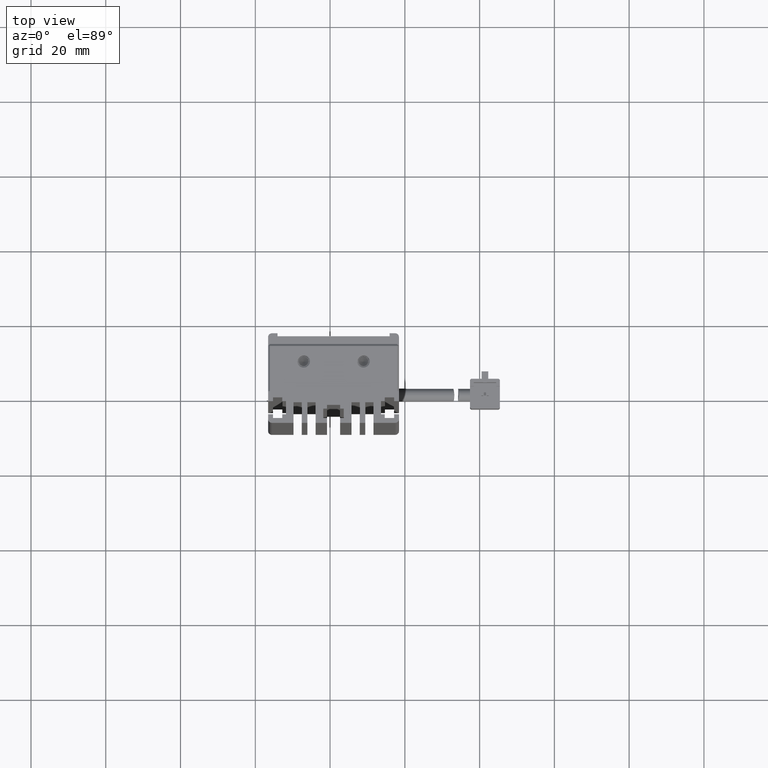
[diagram: clean part render]
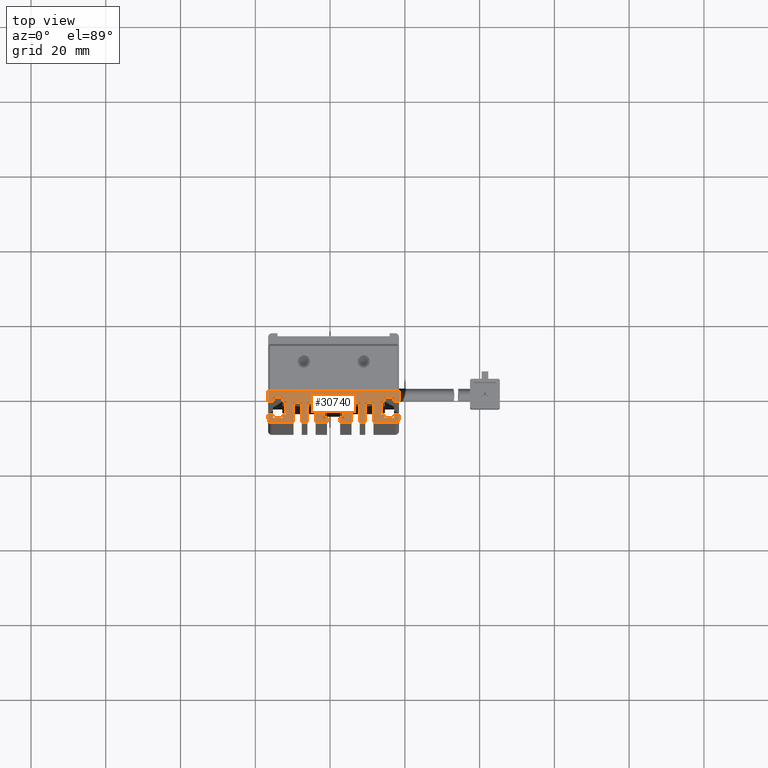
[diagram: same view with one face highlighted and labeled with its STEP entity id]
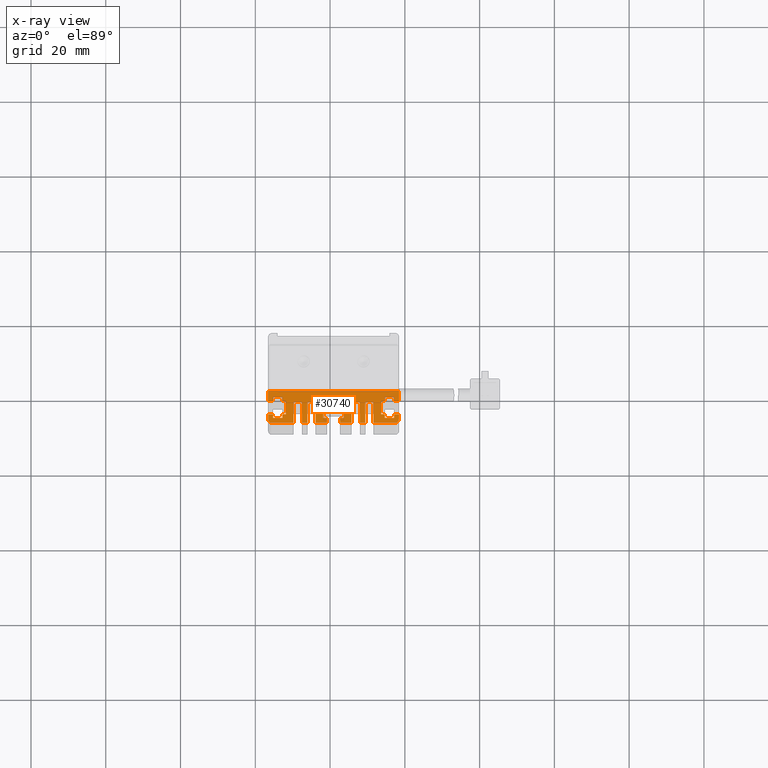
[diagram: x-ray of the same camera — body ghosted, the highlighted face saturated]
A machine part, top view. The second image highlights one B-rep face of the part: STEP entity #30740.
The next image is the same camera in x-ray: the body ghosted, the highlighted face saturated — about 0% of this face is hidden behind the body in this view.
In plain terms, the highlighted planar face has unit normal (-0, 0, 1).
Its self-contained STEP definition (entity closure, byte-faithful):
#185 = DIRECTION ( 'NONE',  ( 2.668805347656621400E-015, 1.000000000000000000, -0.0000000000000000000 ) ) ;
#344 = LINE ( 'NONE', #76469, #28921 ) ;
#362 = EDGE_CURVE ( 'NONE', #62954, #41228, #62136, .T. ) ;
#682 = VECTOR ( 'NONE', #69447, 1000.000000000000000 ) ;
#701 = EDGE_CURVE ( 'NONE', #39169, #73871, #40208, .T. ) ;
#904 = VERTEX_POINT ( 'NONE', #25972 ) ;
#1289 = EDGE_CURVE ( 'NONE', #8022, #14047, #72334, .T. ) ;
#1401 = ORIENTED_EDGE ( 'NONE', *, *, #59778, .T. ) ;
#1998 = DIRECTION ( 'NONE',  ( 1.000000000000000000, 0.0000000000000000000, 0.0000000000000000000 ) ) ;
#2002 = LINE ( 'NONE', #37028, #3905 ) ;
#2380 = CARTESIAN_POINT ( 'NONE',  ( 28.22537974683543600, 13.29073232304836900, -23.00000000000000700 ) ) ;
#2698 = ORIENTED_EDGE ( 'NONE', *, *, #10416, .T. ) ;
#2758 = EDGE_CURVE ( 'NONE', #22327, #42238, #67622, .T. ) ;
#2954 = ORIENTED_EDGE ( 'NONE', *, *, #30170, .T. ) ;
#3055 = CARTESIAN_POINT ( 'NONE',  ( 23.42537974683543600, 7.083797468354391400, -23.00000000000000700 ) ) ;
#3188 = EDGE_CURVE ( 'NONE', #27898, #40949, #47352, .T. ) ;
#3704 = EDGE_CURVE ( 'NONE', #47116, #22209, #25251, .T. ) ;
#3745 = LINE ( 'NONE', #23542, #77993 ) ;
#3905 = VECTOR ( 'NONE', #43112, 1000.000000000000000 ) ;
#4043 = CARTESIAN_POINT ( 'NONE',  ( 53.62537974683541400, 7.083797468354437600, -23.00000000000000700 ) ) ;
#4123 = DIRECTION ( 'NONE',  ( -0.0000000000000000000, -1.000000000000000000, -0.0000000000000000000 ) ) ;
#4269 = CARTESIAN_POINT ( 'NONE',  ( 57.12537974683549900, 7.083797468354550400, -23.00000000000000700 ) ) ;
#4695 = DIRECTION ( 'NONE',  ( 1.000000000000000000, 0.0000000000000000000, 0.0000000000000000000 ) ) ;
#5182 = VERTEX_POINT ( 'NONE', #39689 ) ;
#5607 = ORIENTED_EDGE ( 'NONE', *, *, #71318, .F. ) ;
#6165 = CARTESIAN_POINT ( 'NONE',  ( 57.42537974683542500, 11.99073232304837700, -23.00000000000000700 ) ) ;
#6465 = CARTESIAN_POINT ( 'NONE',  ( 54.62537974683541400, 16.79073232304837000, -23.00000000000000700 ) ) ;
#6592 = CARTESIAN_POINT ( 'NONE',  ( 27.22537974683538000, 7.083797468354556600, -23.00000000000000700 ) ) ;
#6610 = CARTESIAN_POINT ( 'NONE',  ( 24.72537974683546100, 7.083797468354324800, -23.00000000000000700 ) ) ;
#6808 = VERTEX_POINT ( 'NONE', #2380 ) ;
#6810 = ORIENTED_EDGE ( 'NONE', *, *, #3188, .T. ) ;
#7089 = EDGE_CURVE ( 'NONE', #53623, #48188, #56304, .T. ) ;
#7168 = EDGE_CURVE ( 'NONE', #57560, #9697, #50538, .T. ) ;
#7171 = CARTESIAN_POINT ( 'NONE',  ( 58.42537974683542500, 19.49073232304837000, -22.99999999999999300 ) ) ;
#7292 = AXIS2_PLACEMENT_3D ( 'NONE', #74841, #44547, #39237 ) ;
#7948 = VECTOR ( 'NONE', #185, 1000.000000000000000 ) ;
#8022 = VERTEX_POINT ( 'NONE', #68140 ) ;
#8041 = CARTESIAN_POINT ( 'NONE',  ( 58.42537974683542500, 11.99073232304837500, -23.00000000000000700 ) ) ;
#8344 = ORIENTED_EDGE ( 'NONE', *, *, #11284, .F. ) ;
#8656 = LINE ( 'NONE', #51615, #57182 ) ;
#8680 = LINE ( 'NONE', #14951, #64862 ) ;
#8825 = ORIENTED_EDGE ( 'NONE', *, *, #53658, .F. ) ;
#8947 = EDGE_CURVE ( 'NONE', #73871, #20281, #41309, .T. ) ;
#9143 = ORIENTED_EDGE ( 'NONE', *, *, #13932, .T. ) ;
#9316 = DIRECTION ( 'NONE',  ( -1.000000000000000000, -1.239088197126290600E-016, -0.0000000000000000000 ) ) ;
#9667 = DIRECTION ( 'NONE',  ( -2.668805347656621400E-015, 1.000000000000000000, -0.0000000000000000000 ) ) ;
#9697 = VERTEX_POINT ( 'NONE', #40937 ) ;
#9719 = VERTEX_POINT ( 'NONE', #41701 ) ;
#9904 = LINE ( 'NONE', #44090, #40433 ) ;
#10023 = CARTESIAN_POINT ( 'NONE',  ( 23.42537974683542100, 16.79073232304837400, -22.99999999999999300 ) ) ;
#10128 = EDGE_CURVE ( 'NONE', #19540, #22209, #34246, .T. ) ;
#10129 = DIRECTION ( 'NONE',  ( 0.0000000000000000000, 1.000000000000000000, -0.0000000000000000000 ) ) ;
#10416 = EDGE_CURVE ( 'NONE', #60286, #34720, #74162, .T. ) ;
#10492 = EDGE_CURVE ( 'NONE', #26586, #45784, #38008, .T. ) ;
#10544 = DIRECTION ( 'NONE',  ( -8.673617379884041800E-015, -1.000000000000000000, -0.0000000000000000000 ) ) ;
#10708 = ORIENTED_EDGE ( 'NONE', *, *, #69556, .F. ) ;
#10733 = DIRECTION ( 'NONE',  ( 1.000000000000000000, 2.001604010742476800E-015, -0.0000000000000000000 ) ) ;
#10833 = ORIENTED_EDGE ( 'NONE', *, *, #7089, .T. ) ;
#11284 = EDGE_CURVE ( 'NONE', #49636, #904, #46705, .T. ) ;
#11555 = CARTESIAN_POINT ( 'NONE',  ( 58.42537974683542500, 7.083797468354437600, -23.00000000000000700 ) ) ;
#11775 = LINE ( 'NONE', #43115, #22215 ) ;
#11950 = VERTEX_POINT ( 'NONE', #13329 ) ;
#12013 = CARTESIAN_POINT ( 'NONE',  ( 40.92537974683542500, 16.49073232304836600, -23.00000000000000700 ) ) ;
#12018 = VERTEX_POINT ( 'NONE', #19708 ) ;
#12056 = CIRCLE ( 'NONE', #52237, 0.9999999999999974500 ) ;
#12270 = EDGE_CURVE ( 'NONE', #5182, #19540, #12056, .T. ) ;
#12295 = VECTOR ( 'NONE', #9667, 1000.000000000000000 ) ;
#12792 = LINE ( 'NONE', #76533, #69966 ) ;
#12863 = DIRECTION ( 'NONE',  ( -1.000000000000000000, 1.334402673828317800E-015, -0.0000000000000000000 ) ) ;
#13284 = DIRECTION ( 'NONE',  ( 0.0000000000000000000, 1.000000000000000000, -0.0000000000000000000 ) ) ;
#13329 = CARTESIAN_POINT ( 'NONE',  ( 42.67537974683542500, 10.99073232304837000, -23.00000000000000700 ) ) ;
#13443 = EDGE_CURVE ( 'NONE', #70745, #62367, #69740, .T. ) ;
#13462 = ORIENTED_EDGE ( 'NONE', *, *, #37795, .T. ) ;
#13530 = DIRECTION ( 'NONE',  ( 0.0000000000000000000, 1.000000000000000000, -0.0000000000000000000 ) ) ;
#13885 = DIRECTION ( 'NONE',  ( 1.000000000000000000, 0.0000000000000000000, 0.0000000000000000000 ) ) ;
#13932 = EDGE_CURVE ( 'NONE', #31182, #29543, #36067, .T. ) ;
#14047 = VERTEX_POINT ( 'NONE', #37077 ) ;
#14199 = CARTESIAN_POINT ( 'NONE',  ( 40.92537974683542500, 10.99073232304837000, -23.00000000000000700 ) ) ;
#14363 = ORIENTED_EDGE ( 'NONE', *, *, #44456, .T. ) ;
#14486 = FACE_OUTER_BOUND ( 'NONE', #28365, .T. ) ;
#14543 = CARTESIAN_POINT ( 'NONE',  ( 40.92537974683542500, 14.79073232304837000, -23.00000000000000700 ) ) ;
#14650 = CARTESIAN_POINT ( 'NONE',  ( 36.12537974683543500, 7.083797468354437600, -23.00000000000000700 ) ) ;
#14907 = CARTESIAN_POINT ( 'NONE',  ( 40.92537974683541100, 16.79073232304839500, -23.00000000000000700 ) ) ;
#14951 = CARTESIAN_POINT ( 'NONE',  ( 40.92537974683542500, 10.99073232304837000, -23.00000000000000700 ) ) ;
#15087 = VERTEX_POINT ( 'NONE', #21457 ) ;
#15120 = CARTESIAN_POINT ( 'NONE',  ( 58.42537974683542500, 13.29073232304837900, -23.00000000000000700 ) ) ;
#15621 = DIRECTION ( 'NONE',  ( 0.0000000000000000000, 1.000000000000000000, -0.0000000000000000000 ) ) ;
#15846 = LINE ( 'NONE', #40935, #34036 ) ;
#15847 = VERTEX_POINT ( 'NONE', #67429 ) ;
#15878 = CARTESIAN_POINT ( 'NONE',  ( 30.22537974683542900, 10.99073232304837000, -22.99999999999999300 ) ) ;
#15911 = EDGE_CURVE ( 'NONE', #58105, #56391, #35394, .T. ) ;
#16034 = CARTESIAN_POINT ( 'NONE',  ( 49.42537974683541800, 10.99073232304837000, -22.99999999999999300 ) ) ;
#16057 = ORIENTED_EDGE ( 'NONE', *, *, #701, .F. ) ;
#16228 = DIRECTION ( 'NONE',  ( 0.0000000000000000000, 1.000000000000000000, -0.0000000000000000000 ) ) ;
#16343 = VERTEX_POINT ( 'NONE', #49486 ) ;
#16454 = CARTESIAN_POINT ( 'NONE',  ( 39.17537974683542500, 7.083797468354437600, -23.00000000000000700 ) ) ;
#16698 = EDGE_CURVE ( 'NONE', #43483, #41293, #3745, .T. ) ;
#17438 = ORIENTED_EDGE ( 'NONE', *, *, #2758, .F. ) ;
#17660 = ORIENTED_EDGE ( 'NONE', *, *, #16698, .T. ) ;
#18624 = CARTESIAN_POINT ( 'NONE',  ( 40.92537974683543900, 16.79073232304839500, -23.00000000000000700 ) ) ;
#18800 = ORIENTED_EDGE ( 'NONE', *, *, #34940, .T. ) ;
#18906 = DIRECTION ( 'NONE',  ( -1.000000000000000000, 0.0000000000000000000, 0.0000000000000000000 ) ) ;
#18960 = CARTESIAN_POINT ( 'NONE',  ( 40.92537974683542500, 12.29073232304837600, -23.00000000000000700 ) ) ;
#19101 = EDGE_CURVE ( 'NONE', #20662, #73630, #57297, .T. ) ;
#19131 = VECTOR ( 'NONE', #26913, 1000.000000000000000 ) ;
#19220 = ORIENTED_EDGE ( 'NONE', *, *, #362, .T. ) ;
#19330 = ORIENTED_EDGE ( 'NONE', *, *, #54443, .T. ) ;
#19465 = ORIENTED_EDGE ( 'NONE', *, *, #30911, .T. ) ;
#19540 = VERTEX_POINT ( 'NONE', #53902 ) ;
#19708 = CARTESIAN_POINT ( 'NONE',  ( 39.17537974683542500, 10.99073232304837000, -23.00000000000000700 ) ) ;
#19855 = CARTESIAN_POINT ( 'NONE',  ( 23.42537974683542100, 19.49073232304836600, -22.99999999999999300 ) ) ;
#19882 = LINE ( 'NONE', #18624, #78005 ) ;
#20281 = VERTEX_POINT ( 'NONE', #15120 ) ;
#20633 = CARTESIAN_POINT ( 'NONE',  ( 51.62537974683541400, 7.083797468354437600, -23.00000000000000700 ) ) ;
#20662 = VERTEX_POINT ( 'NONE', #72081 ) ;
#20707 = CARTESIAN_POINT ( 'NONE',  ( 40.92537974683542500, 16.49073232304836600, -23.00000000000000700 ) ) ;
#21104 = DIRECTION ( 'NONE',  ( 1.000000000000000000, 0.0000000000000000000, 0.0000000000000000000 ) ) ;
#21348 = LINE ( 'NONE', #11555, #46127 ) ;
#21457 = CARTESIAN_POINT ( 'NONE',  ( 27.22537974683542900, 12.29073232304837200, -23.00000000000000700 ) ) ;
#21483 = CARTESIAN_POINT ( 'NONE',  ( 30.22537974683543300, 7.083797468354437600, -23.00000000000000700 ) ) ;
#21656 = LINE ( 'NONE', #37526, #53116 ) ;
#21748 = VECTOR ( 'NONE', #57529, 1000.000000000000000 ) ;
#21814 = CARTESIAN_POINT ( 'NONE',  ( 40.92537974683542500, 19.49073232304837000, -23.00000000000000700 ) ) ;
#21957 = VECTOR ( 'NONE', #61038, 1000.000000000000000 ) ;
#22069 = VERTEX_POINT ( 'NONE', #39941 ) ;
#22209 = VERTEX_POINT ( 'NONE', #67945 ) ;
#22215 = VECTOR ( 'NONE', #13530, 1000.000000000000000 ) ;
#22327 = VERTEX_POINT ( 'NONE', #38947 ) ;
#22418 = DIRECTION ( 'NONE',  ( 1.000000000000000000, 0.0000000000000000000, 0.0000000000000000000 ) ) ;
#22660 = LINE ( 'NONE', #16454, #69357 ) ;
#23019 = CARTESIAN_POINT ( 'NONE',  ( 32.42537974683543200, 16.49073232304836600, -23.00000000000000700 ) ) ;
#23093 = LINE ( 'NONE', #53637, #45959 ) ;
#23186 = CARTESIAN_POINT ( 'NONE',  ( 40.92537974683542500, 17.79073232304837000, -23.00000000000000700 ) ) ;
#23472 = LINE ( 'NONE', #20707, #682 ) ;
#23542 = CARTESIAN_POINT ( 'NONE',  ( 40.92537974683542500, 17.79073232304837000, -23.00000000000000700 ) ) ;
#23752 = EDGE_CURVE ( 'NONE', #29543, #42238, #71253, .T. ) ;
#23755 = EDGE_CURVE ( 'NONE', #41344, #70745, #22660, .T. ) ;
#24097 = DIRECTION ( 'NONE',  ( -1.000000000000000000, -0.0000000000000000000, -0.0000000000000000000 ) ) ;
#24470 = EDGE_CURVE ( 'NONE', #31182, #30656, #15846, .T. ) ;
#24562 = CARTESIAN_POINT ( 'NONE',  ( 47.92537974683541800, 16.49073232304837000, -23.00000000000000700 ) ) ;
#25044 = VECTOR ( 'NONE', #49237, 1000.000000000000000 ) ;
#25095 = CARTESIAN_POINT ( 'NONE',  ( 45.72537974683541500, 16.49073232304837000, -23.00000000000000700 ) ) ;
#25160 = LINE ( 'NONE', #33187, #38605 ) ;
#25251 = LINE ( 'NONE', #32773, #71960 ) ;
#25372 = CARTESIAN_POINT ( 'NONE',  ( 53.62537974683541400, 16.79073232304837000, -23.00000000000000700 ) ) ;
#25496 = EDGE_CURVE ( 'NONE', #53623, #12018, #23093, .T. ) ;
#25844 = VERTEX_POINT ( 'NONE', #49886 ) ;
#25972 = CARTESIAN_POINT ( 'NONE',  ( 32.42537974683543200, 10.99073232304837000, -23.00000000000000700 ) ) ;
#26118 = EDGE_CURVE ( 'NONE', #30656, #66927, #19882, .T. ) ;
#26586 = VERTEX_POINT ( 'NONE', #71825 ) ;
#26633 = EDGE_CURVE ( 'NONE', #70863, #15087, #67468, .T. ) ;
#26692 = CARTESIAN_POINT ( 'NONE',  ( 49.42537974683541800, 16.49073232304836600, -22.99999999999999300 ) ) ;
#26736 = ORIENTED_EDGE ( 'NONE', *, *, #38333, .T. ) ;
#26913 = DIRECTION ( 'NONE',  ( -0.0000000000000000000, -1.000000000000000000, 0.0000000000000000000 ) ) ;
#27012 = ORIENTED_EDGE ( 'NONE', *, *, #53656, .T. ) ;
#27157 = CARTESIAN_POINT ( 'NONE',  ( 28.22537974683543600, 16.79073232304837400, -23.00000000000000700 ) ) ;
#27298 = CIRCLE ( 'NONE', #53288, 1.000000000000000900 ) ;
#27543 = ORIENTED_EDGE ( 'NONE', *, *, #24470, .F. ) ;
#27898 = VERTEX_POINT ( 'NONE', #45231 ) ;
#28365 = EDGE_LOOP ( 'NONE', ( #58354, #17438, #57396, #38572, #62359, #73024, #42399, #17660, #54828, #40895, #19465, #2954, #65693, #53840, #40726, #36824, #31678, #51673, #47228, #19330, #6810, #51184, #8344, #70696, #50169, #31242, #1401, #76752, #10833, #37331, #13462, #45776, #52132, #10708, #66157, #14363, #42104, #62861, #67277, #32740, #2698, #18800, #26736, #19220, #44257, #58302, #41783, #5607, #65159, #50312, #16057, #27012, #29942, #8825, #54939, #33582, #27543, #9143 ) ) ;
#28391 = VECTOR ( 'NONE', #22418, 1000.000000000000000 ) ;
#28476 = CARTESIAN_POINT ( 'NONE',  ( 36.12537974683543500, 10.99073232304837000, -23.00000000000000700 ) ) ;
#28736 = VECTOR ( 'NONE', #51998, 1000.000000000000000 ) ;
#28816 = VECTOR ( 'NONE', #60809, 1000.000000000000000 ) ;
#28832 = CARTESIAN_POINT ( 'NONE',  ( 39.17537974683542500, 14.79073232304837000, -23.00000000000000700 ) ) ;
#28921 = VECTOR ( 'NONE', #40572, 1000.000000000000000 ) ;
#29424 = EDGE_CURVE ( 'NONE', #73377, #9719, #21656, .T. ) ;
#29543 = VERTEX_POINT ( 'NONE', #33681 ) ;
#29942 = ORIENTED_EDGE ( 'NONE', *, *, #1289, .F. ) ;
#30170 = EDGE_CURVE ( 'NONE', #6808, #70863, #9904, .T. ) ;
#30656 = VERTEX_POINT ( 'NONE', #6465 ) ;
#30725 = CARTESIAN_POINT ( 'NONE',  ( 39.17537974683542500, 12.29073232304837200, -23.00000000000000700 ) ) ;
#30740 = ADVANCED_FACE ( 'NONE', ( #14486 ), #44270, .T. ) ;
#30911 = EDGE_CURVE ( 'NONE', #45784, #6808, #61085, .T. ) ;
#30978 = CARTESIAN_POINT ( 'NONE',  ( 36.12537974683543500, 16.49073232304837000, -23.00000000000000700 ) ) ;
#31107 = VERTEX_POINT ( 'NONE', #31163 ) ;
#31111 = DIRECTION ( 'NONE',  ( -8.673617379884041800E-015, -1.000000000000000000, -0.0000000000000000000 ) ) ;
#31163 = CARTESIAN_POINT ( 'NONE',  ( 53.62537974683541400, 13.29073232304837200, -23.00000000000000700 ) ) ;
#31182 = VERTEX_POINT ( 'NONE', #42592 ) ;
#31189 = EDGE_CURVE ( 'NONE', #40949, #904, #2002, .T. ) ;
#31205 = CARTESIAN_POINT ( 'NONE',  ( 57.12537974683542800, 16.79073232304836700, -22.99999999999999300 ) ) ;
#31242 = ORIENTED_EDGE ( 'NONE', *, *, #15911, .T. ) ;
#31678 = ORIENTED_EDGE ( 'NONE', *, *, #10128, .F. ) ;
#31741 = CARTESIAN_POINT ( 'NONE',  ( 40.92537974683542500, 16.49073232304837000, -23.00000000000000700 ) ) ;
#32740 = ORIENTED_EDGE ( 'NONE', *, *, #50690, .T. ) ;
#32773 = CARTESIAN_POINT ( 'NONE',  ( 40.92537974683543900, 13.29073232304833900, -23.00000000000000700 ) ) ;
#32921 = LINE ( 'NONE', #65151, #40552 ) ;
#33069 = VECTOR ( 'NONE', #13284, 1000.000000000000000 ) ;
#33187 = CARTESIAN_POINT ( 'NONE',  ( 23.42537974683542100, 7.083797468354437600, -23.00000000000000700 ) ) ;
#33582 = ORIENTED_EDGE ( 'NONE', *, *, #26118, .F. ) ;
#33681 = CARTESIAN_POINT ( 'NONE',  ( 57.12537974683542100, 17.79073232304837000, -23.00000000000000700 ) ) ;
#34009 = LINE ( 'NONE', #6610, #68278 ) ;
#34036 = VECTOR ( 'NONE', #10544, 1000.000000000000000 ) ;
#34246 = LINE ( 'NONE', #3055, #12295 ) ;
#34297 = DIRECTION ( 'NONE',  ( 0.0000000000000000000, 1.000000000000000000, -0.0000000000000000000 ) ) ;
#34524 = EDGE_CURVE ( 'NONE', #15087, #38542, #58523, .T. ) ;
#34717 = DIRECTION ( 'NONE',  ( -1.000000000000000000, 0.0000000000000000000, 0.0000000000000000000 ) ) ;
#34720 = VERTEX_POINT ( 'NONE', #24562 ) ;
#34940 = EDGE_CURVE ( 'NONE', #34720, #77441, #54672, .T. ) ;
#35059 = DIRECTION ( 'NONE',  ( -1.000000000000000000, -0.0000000000000000000, -0.0000000000000000000 ) ) ;
#35394 = LINE ( 'NONE', #14650, #19131 ) ;
#35869 = CARTESIAN_POINT ( 'NONE',  ( 42.67537974683542500, 7.083797468354437600, -23.00000000000000700 ) ) ;
#36067 = LINE ( 'NONE', #23186, #28391 ) ;
#36181 = EDGE_CURVE ( 'NONE', #41228, #25844, #47570, .T. ) ;
#36320 = LINE ( 'NONE', #4043, #68677 ) ;
#36760 = DIRECTION ( 'NONE',  ( -1.000000000000000000, -0.0000000000000000000, -0.0000000000000000000 ) ) ;
#36824 = ORIENTED_EDGE ( 'NONE', *, *, #3704, .T. ) ;
#37028 = CARTESIAN_POINT ( 'NONE',  ( 32.42537974683543200, 7.083797468354437600, -23.00000000000000700 ) ) ;
#37047 = CARTESIAN_POINT ( 'NONE',  ( 57.42537974683542500, 10.99073232304837200, -23.00000000000000700 ) ) ;
#37077 = CARTESIAN_POINT ( 'NONE',  ( 54.62537974683542800, 12.29073232304837400, -23.00000000000000700 ) ) ;
#37331 = ORIENTED_EDGE ( 'NONE', *, *, #47556, .T. ) ;
#37526 = CARTESIAN_POINT ( 'NONE',  ( 40.92537974683542500, 14.79073232304837000, -23.00000000000000700 ) ) ;
#37608 = VERTEX_POINT ( 'NONE', #19855 ) ;
#37795 = EDGE_CURVE ( 'NONE', #15847, #41344, #38682, .T. ) ;
#38008 = LINE ( 'NONE', #14907, #21748 ) ;
#38167 = EDGE_CURVE ( 'NONE', #57560, #37608, #25160, .T. ) ;
#38196 = LINE ( 'NONE', #14199, #57202 ) ;
#38333 = EDGE_CURVE ( 'NONE', #77441, #62954, #48885, .T. ) ;
#38408 = DIRECTION ( 'NONE',  ( -1.000000000000000000, -0.0000000000000000000, -0.0000000000000000000 ) ) ;
#38542 = VERTEX_POINT ( 'NONE', #68214 ) ;
#38572 = ORIENTED_EDGE ( 'NONE', *, *, #66128, .T. ) ;
#38605 = VECTOR ( 'NONE', #64283, 1000.000000000000000 ) ;
#38682 = LINE ( 'NONE', #14543, #44397 ) ;
#38842 = DIRECTION ( 'NONE',  ( 1.000000000000000000, 0.0000000000000000000, 0.0000000000000000000 ) ) ;
#38947 = CARTESIAN_POINT ( 'NONE',  ( 58.42537974683542500, 16.79073232304836700, -22.99999999999999300 ) ) ;
#39169 = VERTEX_POINT ( 'NONE', #43637 ) ;
#39237 = DIRECTION ( 'NONE',  ( 1.000000000000000000, 0.0000000000000000000, 0.0000000000000000000 ) ) ;
#39453 = VECTOR ( 'NONE', #77278, 1000.000000000000000 ) ;
#39689 = CARTESIAN_POINT ( 'NONE',  ( 24.42537974683542500, 10.99073232304837000, -23.00000000000000700 ) ) ;
#39941 = CARTESIAN_POINT ( 'NONE',  ( 33.92537974683543200, 16.49073232304837000, -23.00000000000000700 ) ) ;
#40208 = LINE ( 'NONE', #59850, #55385 ) ;
#40433 = VECTOR ( 'NONE', #68322, 1000.000000000000000 ) ;
#40552 = VECTOR ( 'NONE', #34297, 1000.000000000000000 ) ;
#40572 = DIRECTION ( 'NONE',  ( 1.000000000000000000, 0.0000000000000000000, -0.0000000000000000000 ) ) ;
#40726 = ORIENTED_EDGE ( 'NONE', *, *, #48781, .T. ) ;
#40895 = ORIENTED_EDGE ( 'NONE', *, *, #10492, .T. ) ;
#40935 = CARTESIAN_POINT ( 'NONE',  ( 54.62537974683532800, 7.083797468354319400, -23.00000000000000700 ) ) ;
#40937 = CARTESIAN_POINT ( 'NONE',  ( 24.72537974683541900, 16.79073232304837400, -22.99999999999999300 ) ) ;
#40949 = VERTEX_POINT ( 'NONE', #23019 ) ;
#41187 = CARTESIAN_POINT ( 'NONE',  ( 42.67537974683542500, 15.79073232304837000, -23.00000000000000700 ) ) ;
#41228 = VERTEX_POINT ( 'NONE', #26692 ) ;
#41293 = VERTEX_POINT ( 'NONE', #70612 ) ;
#41307 = VECTOR ( 'NONE', #45836, 1000.000000000000000 ) ;
#41309 = LINE ( 'NONE', #47213, #57517 ) ;
#41344 = VERTEX_POINT ( 'NONE', #28832 ) ;
#41701 = CARTESIAN_POINT ( 'NONE',  ( 42.67537974683542500, 14.79073232304837000, -23.00000000000000700 ) ) ;
#41783 = ORIENTED_EDGE ( 'NONE', *, *, #19101, .T. ) ;
#42104 = ORIENTED_EDGE ( 'NONE', *, *, #60472, .F. ) ;
#42238 = VERTEX_POINT ( 'NONE', #31205 ) ;
#42334 = VECTOR ( 'NONE', #38408, 1000.000000000000000 ) ;
#42399 = ORIENTED_EDGE ( 'NONE', *, *, #46277, .T. ) ;
#42444 = CARTESIAN_POINT ( 'NONE',  ( 40.92537974683543900, 16.79073232304838800, -23.00000000000000700 ) ) ;
#42592 = CARTESIAN_POINT ( 'NONE',  ( 54.62537974683542800, 17.79073232304837000, -23.00000000000000700 ) ) ;
#42929 = LINE ( 'NONE', #18960, #44848 ) ;
#43012 = LINE ( 'NONE', #48378, #45914 ) ;
#43016 = CARTESIAN_POINT ( 'NONE',  ( 58.42537974683541100, 7.083797468354391400, -23.00000000000000700 ) ) ;
#43088 = CARTESIAN_POINT ( 'NONE',  ( 33.92537974683543200, 7.083797468354437600, -23.00000000000000700 ) ) ;
#43112 = DIRECTION ( 'NONE',  ( -0.0000000000000000000, -1.000000000000000000, 0.0000000000000000000 ) ) ;
#43115 = CARTESIAN_POINT ( 'NONE',  ( 42.67537974683542500, 7.083797468354437600, -23.00000000000000700 ) ) ;
#43322 = DIRECTION ( 'NONE',  ( 6.938893903907234700E-015, 1.000000000000000000, -0.0000000000000000000 ) ) ;
#43483 = VERTEX_POINT ( 'NONE', #50969 ) ;
#43637 = CARTESIAN_POINT ( 'NONE',  ( 57.12537974683542100, 12.29073232304837600, -23.00000000000000700 ) ) ;
#43948 = VECTOR ( 'NONE', #72564, 1000.000000000000000 ) ;
#44090 = CARTESIAN_POINT ( 'NONE',  ( 40.92537974683543900, 13.29073232304834700, -23.00000000000000700 ) ) ;
#44257 = ORIENTED_EDGE ( 'NONE', *, *, #36181, .T. ) ;
#44270 = PLANE ( 'NONE',  #7292 ) ;
#44397 = VECTOR ( 'NONE', #44933, 1000.000000000000000 ) ;
#44456 = EDGE_CURVE ( 'NONE', #73377, #44775, #43012, .T. ) ;
#44547 = DIRECTION ( 'NONE',  ( -0.0000000000000000000, 0.0000000000000000000, 1.000000000000000000 ) ) ;
#44718 = VECTOR ( 'NONE', #45871, 1000.000000000000000 ) ;
#44775 = VERTEX_POINT ( 'NONE', #73647 ) ;
#44848 = VECTOR ( 'NONE', #67186, 1000.000000000000000 ) ;
#44933 = DIRECTION ( 'NONE',  ( 1.000000000000000000, 0.0000000000000000000, -0.0000000000000000000 ) ) ;
#45231 = CARTESIAN_POINT ( 'NONE',  ( 30.22537974683543300, 16.49073232304836600, -23.00000000000000700 ) ) ;
#45234 = LINE ( 'NONE', #68862, #77580 ) ;
#45776 = ORIENTED_EDGE ( 'NONE', *, *, #23755, .T. ) ;
#45784 = VERTEX_POINT ( 'NONE', #27157 ) ;
#45836 = DIRECTION ( 'NONE',  ( -0.0000000000000000000, -1.000000000000000000, 0.0000000000000000000 ) ) ;
#45871 = DIRECTION ( 'NONE',  ( 8.673617379884041800E-015, -1.000000000000000000, -0.0000000000000000000 ) ) ;
#45914 = VECTOR ( 'NONE', #72589, 1000.000000000000000 ) ;
#45959 = VECTOR ( 'NONE', #4123, 1000.000000000000000 ) ;
#46127 = VECTOR ( 'NONE', #77551, 1000.000000000000000 ) ;
#46277 = EDGE_CURVE ( 'NONE', #9697, #43483, #32921, .T. ) ;
#46550 = EDGE_CURVE ( 'NONE', #53778, #20281, #50869, .T. ) ;
#46600 = CARTESIAN_POINT ( 'NONE',  ( 28.22537974683543600, 7.083797468354437600, -23.00000000000000700 ) ) ;
#46623 = CARTESIAN_POINT ( 'NONE',  ( 43.67537974683542500, 14.79073232304837000, -23.00000000000000700 ) ) ;
#46663 = CARTESIAN_POINT ( 'NONE',  ( 38.17537974683542500, 12.29073232304837200, -23.00000000000000700 ) ) ;
#46705 = LINE ( 'NONE', #60544, #69564 ) ;
#46708 = DIRECTION ( 'NONE',  ( 8.673617379884073300E-015, -1.000000000000000000, -0.0000000000000000000 ) ) ;
#47116 = VERTEX_POINT ( 'NONE', #70545 ) ;
#47213 = CARTESIAN_POINT ( 'NONE',  ( 40.92537974683541100, 13.29073232304834400, -23.00000000000000700 ) ) ;
#47228 = ORIENTED_EDGE ( 'NONE', *, *, #53903, .T. ) ;
#47352 = LINE ( 'NONE', #12013, #65488 ) ;
#47412 = VECTOR ( 'NONE', #72135, 1000.000000000000000 ) ;
#47556 = EDGE_CURVE ( 'NONE', #48188, #15847, #8656, .T. ) ;
#47570 = LINE ( 'NONE', #48557, #71408 ) ;
#47877 = VECTOR ( 'NONE', #70276, 1000.000000000000000 ) ;
#48188 = VERTEX_POINT ( 'NONE', #46663 ) ;
#48378 = CARTESIAN_POINT ( 'NONE',  ( 43.67537974683542500, 7.083797468354437600, -23.00000000000000700 ) ) ;
#48557 = CARTESIAN_POINT ( 'NONE',  ( 40.92537974683542500, 16.49073232304836600, -23.00000000000000700 ) ) ;
#48781 = EDGE_CURVE ( 'NONE', #38542, #47116, #34009, .T. ) ;
#48885 = LINE ( 'NONE', #65073, #39453 ) ;
#49021 = DIRECTION ( 'NONE',  ( -0.0000000000000000000, -0.0000000000000000000, -1.000000000000000000 ) ) ;
#49080 = LINE ( 'NONE', #20633, #72909 ) ;
#49237 = DIRECTION ( 'NONE',  ( 0.0000000000000000000, 1.000000000000000000, -0.0000000000000000000 ) ) ;
#49486 = CARTESIAN_POINT ( 'NONE',  ( 42.67537974683542500, 12.29073232304837200, -23.00000000000000700 ) ) ;
#49636 = VERTEX_POINT ( 'NONE', #67269 ) ;
#49677 = VECTOR ( 'NONE', #75869, 1000.000000000000000 ) ;
#49806 = CARTESIAN_POINT ( 'NONE',  ( 45.72537974683541500, 7.083797468354437600, -23.00000000000000700 ) ) ;
#49886 = CARTESIAN_POINT ( 'NONE',  ( 51.62537974683542100, 16.49073232304836600, -22.99999999999999300 ) ) ;
#50169 = ORIENTED_EDGE ( 'NONE', *, *, #77865, .T. ) ;
#50312 = ORIENTED_EDGE ( 'NONE', *, *, #8947, .F. ) ;
#50538 = LINE ( 'NONE', #57637, #66714 ) ;
#50690 = EDGE_CURVE ( 'NONE', #58430, #60286, #55864, .T. ) ;
#50869 = LINE ( 'NONE', #43016, #7948 ) ;
#50969 = CARTESIAN_POINT ( 'NONE',  ( 24.72537974683541900, 17.79073232304837000, -23.00000000000000700 ) ) ;
#51184 = ORIENTED_EDGE ( 'NONE', *, *, #31189, .T. ) ;
#51479 = EDGE_CURVE ( 'NONE', #25844, #20662, #49080, .T. ) ;
#51571 = VECTOR ( 'NONE', #24097, 1000.000000000000000 ) ;
#51615 = CARTESIAN_POINT ( 'NONE',  ( 38.17537974683542500, 7.083797468354437600, -23.00000000000000700 ) ) ;
#51673 = ORIENTED_EDGE ( 'NONE', *, *, #12270, .F. ) ;
#51998 = DIRECTION ( 'NONE',  ( -0.0000000000000000000, -1.000000000000000000, 0.0000000000000000000 ) ) ;
#52132 = ORIENTED_EDGE ( 'NONE', *, *, #13443, .T. ) ;
#52237 = AXIS2_PLACEMENT_3D ( 'NONE', #77271, #66112, #34717 ) ;
#52508 = LINE ( 'NONE', #54962, #21957 ) ;
#52515 = CARTESIAN_POINT ( 'NONE',  ( 47.92537974683541800, 7.083797468354437600, -23.00000000000000700 ) ) ;
#52519 = CARTESIAN_POINT ( 'NONE',  ( 47.92537974683541800, 10.99073232304837000, -23.00000000000000700 ) ) ;
#52763 = CARTESIAN_POINT ( 'NONE',  ( 45.72537974683541500, 10.99073232304837000, -23.00000000000000700 ) ) ;
#53060 = VERTEX_POINT ( 'NONE', #15878 ) ;
#53116 = VECTOR ( 'NONE', #36760, 1000.000000000000000 ) ;
#53274 = VECTOR ( 'NONE', #15621, 1000.000000000000000 ) ;
#53288 = AXIS2_PLACEMENT_3D ( 'NONE', #6165, #49021, #18906 ) ;
#53623 = VERTEX_POINT ( 'NONE', #30725 ) ;
#53637 = CARTESIAN_POINT ( 'NONE',  ( 39.17537974683542500, 7.083797468354437600, -23.00000000000000700 ) ) ;
#53656 = EDGE_CURVE ( 'NONE', #39169, #14047, #42929, .T. ) ;
#53658 = EDGE_CURVE ( 'NONE', #31107, #8022, #52508, .T. ) ;
#53778 = VERTEX_POINT ( 'NONE', #8041 ) ;
#53840 = ORIENTED_EDGE ( 'NONE', *, *, #34524, .T. ) ;
#53902 = CARTESIAN_POINT ( 'NONE',  ( 23.42537974683542100, 11.99073232304837000, -23.00000000000000700 ) ) ;
#53903 = EDGE_CURVE ( 'NONE', #5182, #53060, #8680, .T. ) ;
#53926 = CARTESIAN_POINT ( 'NONE',  ( 40.92537974683542500, 15.79073232304837000, -23.00000000000000700 ) ) ;
#53994 = EDGE_CURVE ( 'NONE', #31107, #66927, #36320, .T. ) ;
#54443 = EDGE_CURVE ( 'NONE', #53060, #27898, #77955, .T. ) ;
#54485 = CARTESIAN_POINT ( 'NONE',  ( 40.92537974683542500, 12.29073232304837200, -23.00000000000000700 ) ) ;
#54672 = LINE ( 'NONE', #52515, #41307 ) ;
#54828 = ORIENTED_EDGE ( 'NONE', *, *, #78407, .T. ) ;
#54939 = ORIENTED_EDGE ( 'NONE', *, *, #53994, .T. ) ;
#54962 = CARTESIAN_POINT ( 'NONE',  ( 40.92537974683541100, 13.29073232304835100, -23.00000000000000700 ) ) ;
#55385 = VECTOR ( 'NONE', #43322, 1000.000000000000000 ) ;
#55864 = LINE ( 'NONE', #49806, #33069 ) ;
#56200 = DIRECTION ( 'NONE',  ( 1.000000000000000000, 0.0000000000000000000, 0.0000000000000000000 ) ) ;
#56304 = LINE ( 'NONE', #54485, #51571 ) ;
#56391 = VERTEX_POINT ( 'NONE', #28476 ) ;
#56540 = LINE ( 'NONE', #21814, #65117 ) ;
#57182 = VECTOR ( 'NONE', #76035, 1000.000000000000000 ) ;
#57202 = VECTOR ( 'NONE', #1998, 1000.000000000000000 ) ;
#57297 = LINE ( 'NONE', #70029, #49677 ) ;
#57396 = ORIENTED_EDGE ( 'NONE', *, *, #68910, .T. ) ;
#57517 = VECTOR ( 'NONE', #10733, 1000.000000000000000 ) ;
#57529 = DIRECTION ( 'NONE',  ( 1.000000000000000000, 1.734723475976805300E-015, -0.0000000000000000000 ) ) ;
#57560 = VERTEX_POINT ( 'NONE', #10023 ) ;
#57637 = CARTESIAN_POINT ( 'NONE',  ( 40.92537974683542500, 16.79073232304837400, -23.00000000000000700 ) ) ;
#57676 = CARTESIAN_POINT ( 'NONE',  ( 39.17537974683542500, 15.79073232304837000, -23.00000000000000700 ) ) ;
#57783 = EDGE_CURVE ( 'NONE', #11950, #58430, #38196, .T. ) ;
#58023 = CARTESIAN_POINT ( 'NONE',  ( 49.42537974683541800, 7.083797468354437600, -23.00000000000000700 ) ) ;
#58105 = VERTEX_POINT ( 'NONE', #30978 ) ;
#58302 = ORIENTED_EDGE ( 'NONE', *, *, #51479, .T. ) ;
#58354 = ORIENTED_EDGE ( 'NONE', *, *, #23752, .T. ) ;
#58365 = CARTESIAN_POINT ( 'NONE',  ( 54.62537974683547000, 7.083797468354556600, -23.00000000000000700 ) ) ;
#58430 = VERTEX_POINT ( 'NONE', #52763 ) ;
#58523 = LINE ( 'NONE', #68730, #42334 ) ;
#59778 = EDGE_CURVE ( 'NONE', #56391, #12018, #45234, .T. ) ;
#59850 = CARTESIAN_POINT ( 'NONE',  ( 57.12537974683539200, 7.083797468354324800, -23.00000000000000700 ) ) ;
#60262 = CARTESIAN_POINT ( 'NONE',  ( 27.22537974683543600, 13.29073232304837000, -23.00000000000000700 ) ) ;
#60286 = VERTEX_POINT ( 'NONE', #25095 ) ;
#60472 = EDGE_CURVE ( 'NONE', #16343, #44775, #344, .T. ) ;
#60544 = CARTESIAN_POINT ( 'NONE',  ( 40.92537974683542500, 10.99073232304837000, -23.00000000000000700 ) ) ;
#60809 = DIRECTION ( 'NONE',  ( 1.000000000000000000, 0.0000000000000000000, 0.0000000000000000000 ) ) ;
#61038 = DIRECTION ( 'NONE',  ( 1.000000000000000000, 1.734723475976805300E-015, -0.0000000000000000000 ) ) ;
#61085 = LINE ( 'NONE', #46600, #28736 ) ;
#62136 = LINE ( 'NONE', #58023, #47877 ) ;
#62359 = ORIENTED_EDGE ( 'NONE', *, *, #38167, .F. ) ;
#62367 = VERTEX_POINT ( 'NONE', #41187 ) ;
#62483 = EDGE_CURVE ( 'NONE', #16343, #11950, #73494, .T. ) ;
#62861 = ORIENTED_EDGE ( 'NONE', *, *, #62483, .T. ) ;
#62954 = VERTEX_POINT ( 'NONE', #16034 ) ;
#64283 = DIRECTION ( 'NONE',  ( 0.0000000000000000000, 1.000000000000000000, -0.0000000000000000000 ) ) ;
#64862 = VECTOR ( 'NONE', #76183, 1000.000000000000000 ) ;
#65073 = CARTESIAN_POINT ( 'NONE',  ( 40.92537974683542500, 10.99073232304837000, -23.00000000000000700 ) ) ;
#65117 = VECTOR ( 'NONE', #9316, 1000.000000000000000 ) ;
#65151 = CARTESIAN_POINT ( 'NONE',  ( 24.72537974683541900, 7.083797468354437600, -23.00000000000000700 ) ) ;
#65159 = ORIENTED_EDGE ( 'NONE', *, *, #46550, .T. ) ;
#65488 = VECTOR ( 'NONE', #71907, 1000.000000000000000 ) ;
#65693 = ORIENTED_EDGE ( 'NONE', *, *, #26633, .T. ) ;
#66112 = DIRECTION ( 'NONE',  ( -0.0000000000000000000, -0.0000000000000000000, -1.000000000000000000 ) ) ;
#66128 = EDGE_CURVE ( 'NONE', #72195, #37608, #56540, .T. ) ;
#66157 = ORIENTED_EDGE ( 'NONE', *, *, #29424, .F. ) ;
#66373 = EDGE_CURVE ( 'NONE', #49636, #22069, #70769, .T. ) ;
#66561 = VECTOR ( 'NONE', #56200, 1000.000000000000000 ) ;
#66714 = VECTOR ( 'NONE', #21104, 1000.000000000000000 ) ;
#66788 = DIRECTION ( 'NONE',  ( -6.938893903907234700E-015, 1.000000000000000000, -0.0000000000000000000 ) ) ;
#66927 = VERTEX_POINT ( 'NONE', #25372 ) ;
#67186 = DIRECTION ( 'NONE',  ( -1.000000000000000000, -0.0000000000000000000, -0.0000000000000000000 ) ) ;
#67269 = CARTESIAN_POINT ( 'NONE',  ( 33.92537974683543200, 10.99073232304837000, -23.00000000000000700 ) ) ;
#67277 = ORIENTED_EDGE ( 'NONE', *, *, #57783, .T. ) ;
#67429 = CARTESIAN_POINT ( 'NONE',  ( 38.17537974683542500, 14.79073232304837000, -23.00000000000000700 ) ) ;
#67468 = LINE ( 'NONE', #6592, #76007 ) ;
#67622 = LINE ( 'NONE', #42444, #72324 ) ;
#67945 = CARTESIAN_POINT ( 'NONE',  ( 23.42537974683541800, 13.29073232304837200, -22.99999999999999300 ) ) ;
#68140 = CARTESIAN_POINT ( 'NONE',  ( 54.62537974683542100, 13.29073232304837400, -23.00000000000000700 ) ) ;
#68214 = CARTESIAN_POINT ( 'NONE',  ( 24.72537974683542600, 12.29073232304837200, -23.00000000000000700 ) ) ;
#68278 = VECTOR ( 'NONE', #66788, 1000.000000000000000 ) ;
#68322 = DIRECTION ( 'NONE',  ( -1.000000000000000000, 1.734723475976805300E-015, -0.0000000000000000000 ) ) ;
#68677 = VECTOR ( 'NONE', #16228, 1000.000000000000000 ) ;
#68730 = CARTESIAN_POINT ( 'NONE',  ( 40.92537974683542500, 12.29073232304837200, -23.00000000000000700 ) ) ;
#68862 = CARTESIAN_POINT ( 'NONE',  ( 40.92537974683542500, 10.99073232304837000, -23.00000000000000700 ) ) ;
#68910 = EDGE_CURVE ( 'NONE', #22327, #72195, #21348, .T. ) ;
#68936 = DIRECTION ( 'NONE',  ( -1.000000000000000000, 2.001604010742476800E-015, -0.0000000000000000000 ) ) ;
#69357 = VECTOR ( 'NONE', #10129, 1000.000000000000000 ) ;
#69375 = DIRECTION ( 'NONE',  ( -0.0000000000000000000, -1.000000000000000000, 0.0000000000000000000 ) ) ;
#69447 = DIRECTION ( 'NONE',  ( 1.000000000000000000, 0.0000000000000000000, 0.0000000000000000000 ) ) ;
#69556 = EDGE_CURVE ( 'NONE', #9719, #62367, #11775, .T. ) ;
#69564 = VECTOR ( 'NONE', #35059, 1000.000000000000000 ) ;
#69740 = LINE ( 'NONE', #53926, #28816 ) ;
#69966 = VECTOR ( 'NONE', #46708, 1000.000000000000000 ) ;
#70029 = CARTESIAN_POINT ( 'NONE',  ( 40.92537974683542500, 10.99073232304837000, -23.00000000000000700 ) ) ;
#70276 = DIRECTION ( 'NONE',  ( 0.0000000000000000000, 1.000000000000000000, -0.0000000000000000000 ) ) ;
#70545 = CARTESIAN_POINT ( 'NONE',  ( 24.72537974683541900, 13.29073232304837000, -23.00000000000000700 ) ) ;
#70612 = CARTESIAN_POINT ( 'NONE',  ( 27.22537974683542600, 17.79073232304837000, -23.00000000000000700 ) ) ;
#70696 = ORIENTED_EDGE ( 'NONE', *, *, #66373, .T. ) ;
#70745 = VERTEX_POINT ( 'NONE', #57676 ) ;
#70769 = LINE ( 'NONE', #43088, #25044 ) ;
#70863 = VERTEX_POINT ( 'NONE', #60262 ) ;
#71253 = LINE ( 'NONE', #4269, #47412 ) ;
#71318 = EDGE_CURVE ( 'NONE', #53778, #73630, #27298, .T. ) ;
#71408 = VECTOR ( 'NONE', #13885, 1000.000000000000000 ) ;
#71825 = CARTESIAN_POINT ( 'NONE',  ( 27.22537974683543300, 16.79073232304837400, -23.00000000000000700 ) ) ;
#71907 = DIRECTION ( 'NONE',  ( 1.000000000000000000, 0.0000000000000000000, 0.0000000000000000000 ) ) ;
#71960 = VECTOR ( 'NONE', #68936, 1000.000000000000000 ) ;
#72081 = CARTESIAN_POINT ( 'NONE',  ( 51.62537974683542100, 10.99073232304837000, -22.99999999999999300 ) ) ;
#72135 = DIRECTION ( 'NONE',  ( 6.938893903907221300E-015, -1.000000000000000000, -0.0000000000000000000 ) ) ;
#72191 = DIRECTION ( 'NONE',  ( -1.000000000000000000, 1.734723475976805300E-015, -0.0000000000000000000 ) ) ;
#72195 = VERTEX_POINT ( 'NONE', #7171 ) ;
#72324 = VECTOR ( 'NONE', #12863, 1000.000000000000000 ) ;
#72334 = LINE ( 'NONE', #58365, #44718 ) ;
#72564 = DIRECTION ( 'NONE',  ( -0.0000000000000000000, -1.000000000000000000, -0.0000000000000000000 ) ) ;
#72589 = DIRECTION ( 'NONE',  ( -0.0000000000000000000, -1.000000000000000000, 0.0000000000000000000 ) ) ;
#72909 = VECTOR ( 'NONE', #69375, 1000.000000000000000 ) ;
#73024 = ORIENTED_EDGE ( 'NONE', *, *, #7168, .T. ) ;
#73377 = VERTEX_POINT ( 'NONE', #46623 ) ;
#73494 = LINE ( 'NONE', #35869, #43948 ) ;
#73630 = VERTEX_POINT ( 'NONE', #37047 ) ;
#73647 = CARTESIAN_POINT ( 'NONE',  ( 43.67537974683542500, 12.29073232304837200, -23.00000000000000700 ) ) ;
#73871 = VERTEX_POINT ( 'NONE', #75828 ) ;
#74162 = LINE ( 'NONE', #31741, #66561 ) ;
#74841 = CARTESIAN_POINT ( 'NONE',  ( 40.92537974683542500, 7.083797468354437600, -23.00000000000000700 ) ) ;
#75828 = CARTESIAN_POINT ( 'NONE',  ( 57.12537974683542800, 13.29073232304837800, -23.00000000000000700 ) ) ;
#75869 = DIRECTION ( 'NONE',  ( 1.000000000000000000, 0.0000000000000000000, 0.0000000000000000000 ) ) ;
#76007 = VECTOR ( 'NONE', #31111, 1000.000000000000000 ) ;
#76035 = DIRECTION ( 'NONE',  ( 0.0000000000000000000, 1.000000000000000000, -0.0000000000000000000 ) ) ;
#76183 = DIRECTION ( 'NONE',  ( 1.000000000000000000, 0.0000000000000000000, 0.0000000000000000000 ) ) ;
#76469 = CARTESIAN_POINT ( 'NONE',  ( 40.92537974683542500, 12.29073232304837200, -23.00000000000000700 ) ) ;
#76533 = CARTESIAN_POINT ( 'NONE',  ( 27.22537974683551800, 7.083797468354319400, -23.00000000000000700 ) ) ;
#76752 = ORIENTED_EDGE ( 'NONE', *, *, #25496, .F. ) ;
#77271 = CARTESIAN_POINT ( 'NONE',  ( 24.42537974683542500, 11.99073232304837000, -23.00000000000000700 ) ) ;
#77278 = DIRECTION ( 'NONE',  ( 1.000000000000000000, 0.0000000000000000000, -0.0000000000000000000 ) ) ;
#77441 = VERTEX_POINT ( 'NONE', #52519 ) ;
#77551 = DIRECTION ( 'NONE',  ( 0.0000000000000000000, 1.000000000000000000, -0.0000000000000000000 ) ) ;
#77580 = VECTOR ( 'NONE', #38842, 1000.000000000000000 ) ;
#77865 = EDGE_CURVE ( 'NONE', #22069, #58105, #23472, .T. ) ;
#77955 = LINE ( 'NONE', #21483, #53274 ) ;
#77993 = VECTOR ( 'NONE', #4695, 1000.000000000000000 ) ;
#78005 = VECTOR ( 'NONE', #72191, 1000.000000000000000 ) ;
#78407 = EDGE_CURVE ( 'NONE', #41293, #26586, #12792, .T. ) ;